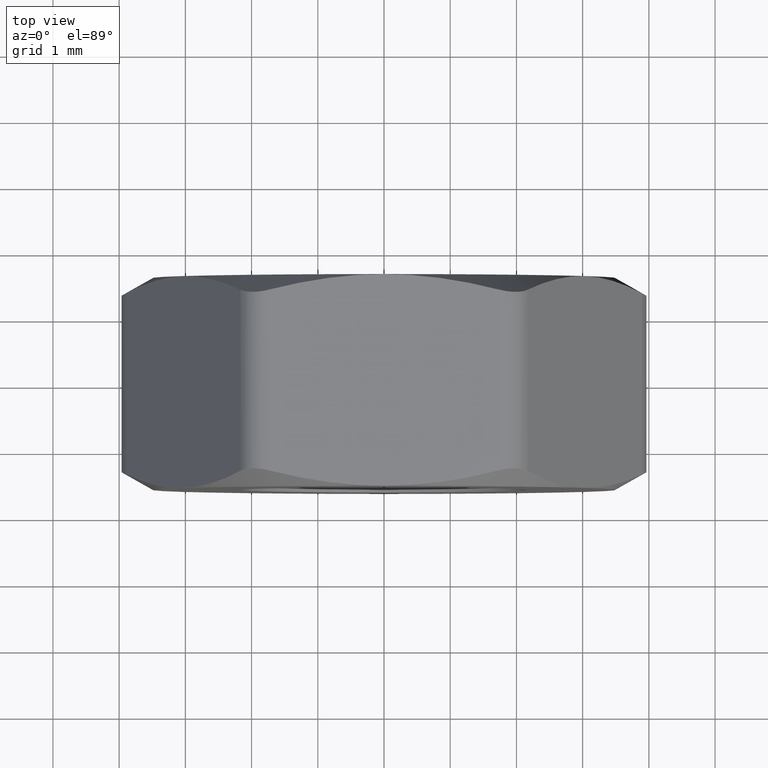
[diagram: clean part render]
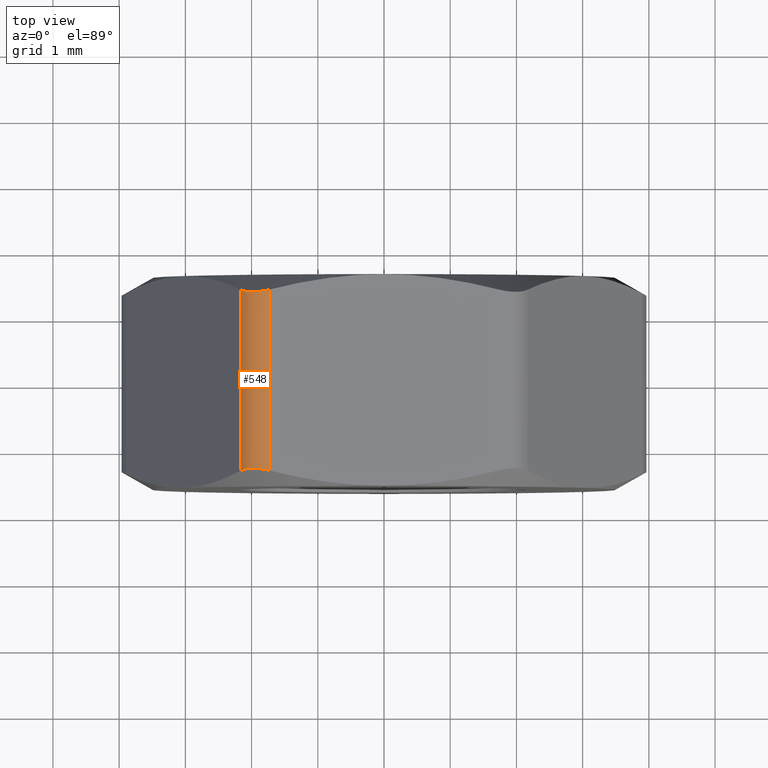
[diagram: same view with one face highlighted and labeled with its STEP entity id]
A machine part, top view. The second image highlights one B-rep face of the part: STEP entity #548.
In plain terms, the highlighted cylindrical surface (edge-blend (fillet) strip) has radius 0.5 mm, axis along (0, -1, 0).
Its self-contained STEP definition (entity closure, byte-faithful):
#77 = ORIENTED_EDGE ( 'NONE', *, *, #476, .F. ) ;
#106 = DIRECTION ( 'NONE',  ( 0.0000000000000000000, 0.0000000000000000000, -1.000000000000000000 ) ) ;
#144 = FACE_OUTER_BOUND ( 'NONE', #1570, .T. ) ;
#210 = CARTESIAN_POINT ( 'NONE',  ( -1.732050807569877500, 1.366101065751989000, 3.499999999999999100 ) ) ;
#223 = CARTESIAN_POINT ( 'NONE',  ( -2.121969493532059200, -1.344030572378913000, 3.324641025091280300 ) ) ;
#234 = CARTESIAN_POINT ( 'NONE',  ( -1.818213813996009100, -1.344036980734853300, 3.499999999999998700 ) ) ;
#264 = CARTESIAN_POINT ( 'NONE',  ( -1.818238839425949200, 1.344030572379175700, 3.499999999999993300 ) ) ;
#279 = B_SPLINE_CURVE_WITH_KNOTS ( 'NONE', 3,
 ( #736, #1692, #1377, #1817, #264, #1367 ),
 .UNSPECIFIED., .F., .F.,
 ( 4, 2, 4 ),
 ( 7.203334719670866100E-015, 0.0002632573935177351400, 0.0005265147870282669500 ),
 .UNSPECIFIED. ) ;
#455 = VECTOR ( 'NONE', #1056, 1000.000000000000000 ) ;
#476 = EDGE_CURVE ( 'NONE', #877, #1936, #279, .T. ) ;
#503 = EDGE_CURVE ( 'NONE', #1936, #1822, #1693, .T. ) ;
#511 = ORIENTED_EDGE ( 'NONE', *, *, #503, .F. ) ;
#514 = ORIENTED_EDGE ( 'NONE', *, *, #1953, .F. ) ;
#531 = CYLINDRICAL_SURFACE ( 'NONE', #1818, 0.5000000000000000000 ) ;
#538 = CARTESIAN_POINT ( 'NONE',  ( -1.732050807569877500, -1.366101065751989000, 3.499999999999999100 ) ) ;
#548 = ADVANCED_FACE ( 'NONE', ( #144 ), #531, .T. ) ;
#584 = B_SPLINE_CURVE_WITH_KNOTS ( 'NONE', 3,
 ( #538, #234, #1957, #1796, #223, #1343 ),
 .UNSPECIFIED., .F., .F.,
 ( 4, 2, 4 ),
 ( 9.707350734249591100E-016, 0.0002632573935150944600, 0.0005265147870292181200 ),
 .UNSPECIFIED. ) ;
#589 = CARTESIAN_POINT ( 'NONE',  ( -1.732050807568879200, 1.600000000000000100, 2.999999999999999100 ) ) ;
#628 = CARTESIAN_POINT ( 'NONE',  ( -2.165063509457811900, 1.366101065750561400, 3.250000000005691400 ) ) ;
#736 = CARTESIAN_POINT ( 'NONE',  ( -2.165063509457811900, 1.366101065750561400, 3.250000000005691400 ) ) ;
#746 = DIRECTION ( 'NONE',  ( 0.0000000000000000000, -1.000000000000000000, 0.0000000000000000000 ) ) ;
#877 = VERTEX_POINT ( 'NONE', #628 ) ;
#1017 = CARTESIAN_POINT ( 'NONE',  ( -1.732050807569877500, -1.366101065751989000, 3.499999999999999100 ) ) ;
#1056 = DIRECTION ( 'NONE',  ( -0.0000000000000000000, 1.000000000000000000, -0.0000000000000000000 ) ) ;
#1059 = CARTESIAN_POINT ( 'NONE',  ( -1.732050807568878700, 1.600000000000000100, 3.499999999999999100 ) ) ;
#1065 = DIRECTION ( 'NONE',  ( 0.0000000000000000000, -1.000000000000000000, 0.0000000000000000000 ) ) ;
#1213 = EDGE_CURVE ( 'NONE', #1464, #877, #2061, .T. ) ;
#1244 = CARTESIAN_POINT ( 'NONE',  ( -2.165063509461098600, -1.366101065752245000, 3.249999999999998700 ) ) ;
#1343 = CARTESIAN_POINT ( 'NONE',  ( -2.165063509461098600, -1.366101065752245000, 3.249999999999998700 ) ) ;
#1367 = CARTESIAN_POINT ( 'NONE',  ( -1.732050807569877500, 1.366101065751989000, 3.499999999999999100 ) ) ;
#1377 = CARTESIAN_POINT ( 'NONE',  ( -2.058490122975286800, 1.332088313469240100, 3.388794603747467900 ) ) ;
#1464 = VERTEX_POINT ( 'NONE', #1244 ) ;
#1570 = EDGE_LOOP ( 'NONE', ( #77, #2010, #514, #511 ) ) ;
#1692 = CARTESIAN_POINT ( 'NONE',  ( -2.121982006248182500, 1.344036980738246800, 3.324619352431210700 ) ) ;
#1693 = LINE ( 'NONE', #1059, #1988 ) ;
#1696 = CARTESIAN_POINT ( 'NONE',  ( -2.165063509461098200, 1.600000000000000100, 3.249999999999999600 ) ) ;
#1796 = CARTESIAN_POINT ( 'NONE',  ( -2.057833504183907500, -1.332013481293250000, 3.389344969317160200 ) ) ;
#1817 = CARTESIAN_POINT ( 'NONE',  ( -1.906342093524492800, 1.332013481293446300, 3.476808576040839100 ) ) ;
#1818 = AXIS2_PLACEMENT_3D ( 'NONE', #589, #1065, #106 ) ;
#1822 = VERTEX_POINT ( 'NONE', #1017 ) ;
#1936 = VERTEX_POINT ( 'NONE', #210 ) ;
#1953 = EDGE_CURVE ( 'NONE', #1822, #1464, #584, .T. ) ;
#1957 = CARTESIAN_POINT ( 'NONE',  ( -1.905537153562247800, -1.332088313469439500, 3.477102041810983900 ) ) ;
#1988 = VECTOR ( 'NONE', #746, 1000.000000000000000 ) ;
#2010 = ORIENTED_EDGE ( 'NONE', *, *, #1213, .F. ) ;
#2061 = LINE ( 'NONE', #1696, #455 ) ;